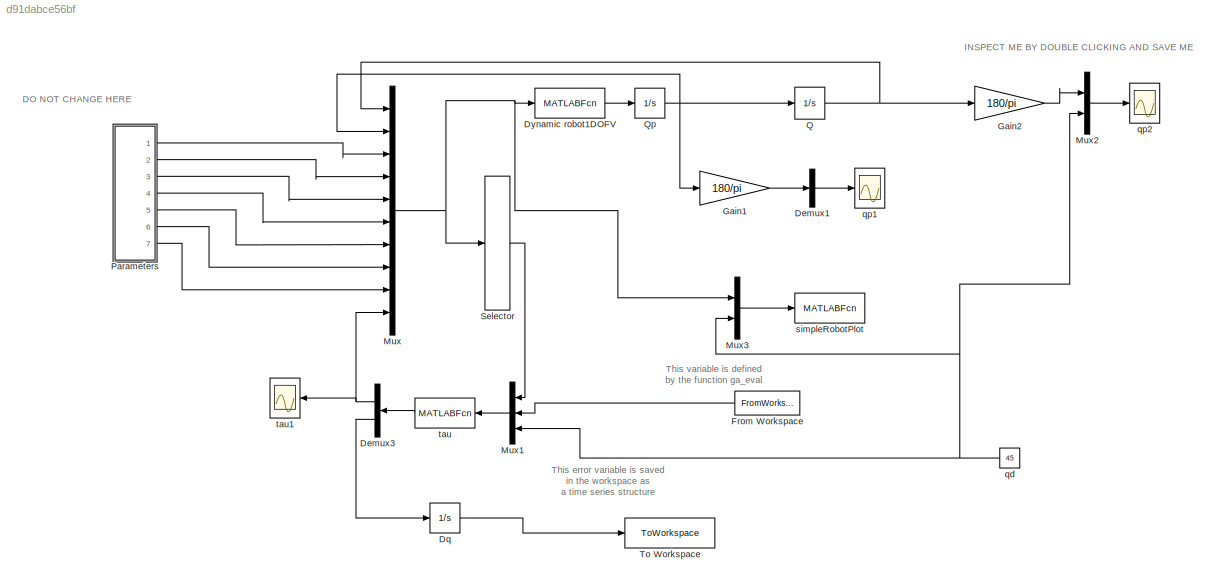
MODEL slx_d91dabce56bf
KIND model
CONFIG AbsTol = auto
CONFIG EnableMultiTasking = on
CONFIG FixedStep = 0.001
CONFIG MaxStep = auto
CONFIG MinStep = auto
CONFIG RelTol = 1e-3
CONFIG SampleTimeConstraint = Unconstrained
CONFIG Solver = ode1
CONFIG SolverName = ode1
CONFIG StartTime = 0.0
CONFIG StopTime = 5
BLOCK [Demux] Demux1
  Outputs = 1
  Ports = [1, 1]
BLOCK [Demux] Demux3
  Outputs = 2
  Ports = [1, 2]
BLOCK [Integrator] Dq
  InitialCondition = [0]
  Ports = [1, 1]
BLOCK [MATLABFcn] Dynamic robot1DOFV
  MATLABFcn = Dynamic_robot1DOFV(u)
  OutputDimensions = 1
  Ports = [1, 1]
BLOCK [FromWorkspace] From Workspace
  VariableName = sim_PD
BLOCK [Gain] Gain1
  Gain = 180/pi
BLOCK [Gain] Gain2
  Gain = 180/pi
BLOCK [Mux] Mux
  DisplayOption = bar
  Inputs = 10
  Ports = [10, 1]
BLOCK [Mux] Mux1
  DisplayOption = bar
  Inputs = 3
  Ports = [3, 1]
BLOCK [Mux] Mux2
  DisplayOption = bar
  Inputs = 2
  Ports = [2, 1]
BLOCK [Mux] Mux3
  DisplayOption = bar
  Inputs = 2
  Ports = [2, 1]
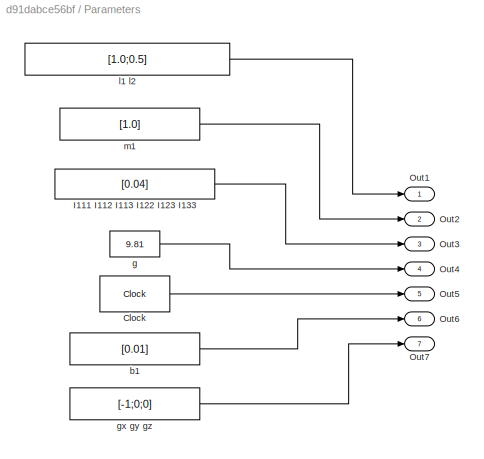
BLOCK [SubSystem] Parameters
  Ports = [0, 7]
  RequestExecContextInheritance = off
BLOCK [Clock] Parameters/Clock
  DisplayTime = on
BLOCK [Constant] Parameters/I111 I112 I113 I122 I123 I133
  Value = [0.04]
BLOCK [Outport] Parameters/Out1
BLOCK [Outport] Parameters/Out2
  Port = 2
BLOCK [Outport] Parameters/Out3
  Port = 3
BLOCK [Outport] Parameters/Out4
  Port = 4
BLOCK [Outport] Parameters/Out5
  Port = 5
BLOCK [Outport] Parameters/Out6
  Port = 6
BLOCK [Outport] Parameters/Out7
  Port = 7
BLOCK [Constant] Parameters/b1 
  Value = [0.01]
BLOCK [Constant] Parameters/g
  Value = 9.81
BLOCK [Constant] Parameters/gx gy gz
  Value = [-1;0;0]
BLOCK [Constant] Parameters/l1 l2 
  Value = [1.0;0.5]
BLOCK [Constant] Parameters/m1 
  Value = [1.0]
BLOCK [Integrator] Q
  Ports = [1, 1]
BLOCK [Integrator] Qp
  InitialCondition = [0]
  Ports = [1, 1]
BLOCK [Selector] Selector
  IndexOptions = Index vector (dialog)
  Indices = [1:12]
  InputPortWidth = 13
  OutputSizes = 1
  Ports = [1, 1]
BLOCK [ToWorkspace] To Workspace
  FixptAsFi = on
  MaxDataPoints = inf
  Ports = [1]
  SampleTime = -1
  SaveFormat = Timeseries
  VariableName = sim_error
BLOCK [Constant] qd
  Value = 45
BLOCK [Scope] qp1
  Floating = off
  NumInputPorts = 1
  Ports = [1]
  ScopeSpecificationString = Simulink.scopes.TimeScopeBlockCfg('CurrentConfiguration', extmgr.ConfigurationSet(extmgr.Configuration('Core','General UI',true),extmgr.Configuration('Core','Source UI',true),extmgr.Configuration('Sources','WiredSimulink',true,'DataLoggingSaveFormat','StructureWithTime','DataLoggingDecimation','1','DataLoggingDecimateData',true,'DataLogging',true,'DataLoggingVariableName','qp'),extmgr.Configuratio...<+1682ch>
BLOCK [Scope] qp2
  Floating = off
  NumInputPorts = 1
  Ports = [1]
  ScopeSpecificationString = Simulink.scopes.TimeScopeBlockCfg('CurrentConfiguration', extmgr.ConfigurationSet(extmgr.Configuration('Core','General UI',true),extmgr.Configuration('Core','Source UI',true),extmgr.Configuration('Sources','WiredSimulink',true,'DataLoggingSaveFormat','StructureWithTime','DataLoggingDecimation','1','DataLoggingDecimateData',true,'DataLogging',true,'DataLoggingVariableName','ScopeData1'),extmgr.Conf...<+1686ch>
BLOCK [MATLABFcn] simpleRobotPlot
  MATLABFcn = simpleRobotPlotv2_pendulum(u)
  OutputDimensions = 0
  Ports = [1]
BLOCK [MATLABFcn] tau
  MATLABFcn = Tau(u)
  OutputDimensions = 2
  Ports = [1, 1]
BLOCK [Scope] tau1
  Floating = off
  NumInputPorts = 1
  Ports = [1]
  ScopeSpecificationString = Simulink.scopes.TimeScopeBlockCfg('CurrentConfiguration', extmgr.ConfigurationSet(extmgr.Configuration('Core','General UI',true),extmgr.Configuration('Core','Source UI',true),extmgr.Configuration('Sources','WiredSimulink',true,'DataLoggingSaveFormat','StructureWithTime','DataLoggingDecimation','1','DataLoggingDecimateData',true,'DataLoggingVariableName','tau','DataLogging',true),extmgr.Configurati...<+1689ch>
ANNOTATION (root): DO NOT CHANGE HERE
ANNOTATION (root): INSPECT ME BY DOUBLE CLICKING AND SAVE ME
ANNOTATION (root): This error variable is saved in the workspace as a time series structure
ANNOTATION (root): This variable is defined by the function ga_eval
LINE Demux1:1 -> qp1:1
NET Demux3:1 -> Mux:10, tau1:1
LINE Demux3:2 -> Dq:1
LINE Dq:1 -> To Workspace:1
LINE Dynamic robot1DOFV:1 -> Qp:1
LINE From Workspace:1 -> Mux1:2
LINE Gain1:1 -> Demux1:1
LINE Gain2:1 -> Mux2:1
LINE Mux1:1 -> tau:1
LINE Mux2:1 -> qp2:1
LINE Mux3:1 -> simpleRobotPlot:1
NET Mux:1 -> Dynamic robot1DOFV:1, Mux3:1, Selector:1
LINE Parameters/Clock:1 -> Parameters/Out5:1
LINE Parameters/I111 I112 I113 I122 I123 I133:1 -> Parameters/Out3:1
LINE Parameters/b1 :1 -> Parameters/Out6:1
LINE Parameters/g:1 -> Parameters/Out4:1
LINE Parameters/gx gy gz:1 -> Parameters/Out7:1
LINE Parameters/l1 l2 :1 -> Parameters/Out1:1
LINE Parameters/m1 :1 -> Parameters/Out2:1
LINE Parameters:1 -> Mux:3
LINE Parameters:2 -> Mux:4
LINE Parameters:3 -> Mux:5
LINE Parameters:4 -> Mux:6
LINE Parameters:5 -> Mux:7
LINE Parameters:6 -> Mux:8
LINE Parameters:7 -> Mux:9
NET Q:1 -> Gain2:1, Mux:1
NET Qp:1 -> Gain1:1, Mux:2, Q:1
LINE Selector:1 -> Mux1:1
NET qd:1 -> Mux1:3, Mux2:2, Mux3:2
LINE tau:1 -> Demux3:1
note: NET lines group one-source signal fan-out (src -> all destinations, sorted); 1:1 wires keep LINE
